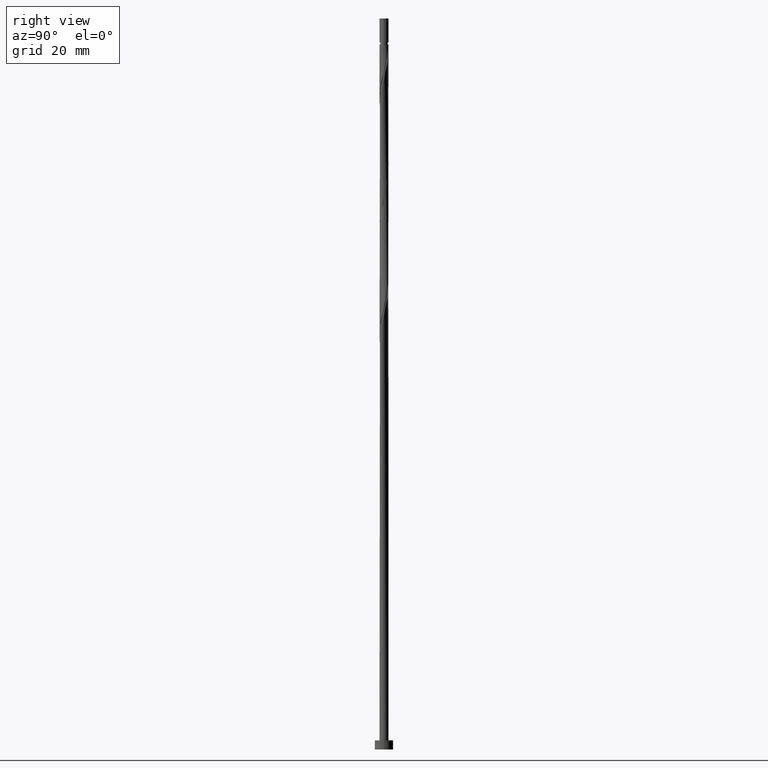
[diagram: clean part render]
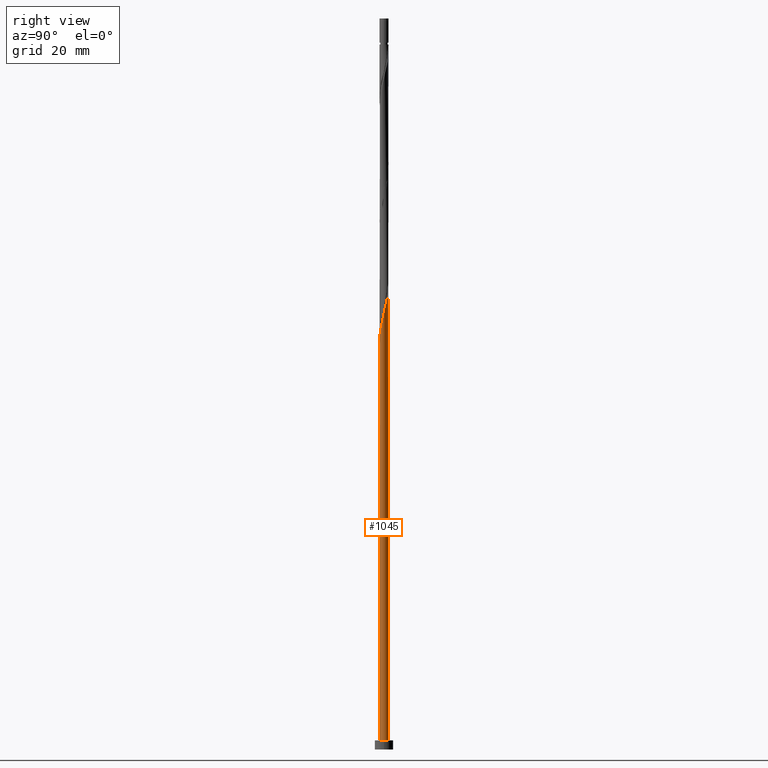
[diagram: same view with one face highlighted and labeled with its STEP entity id]
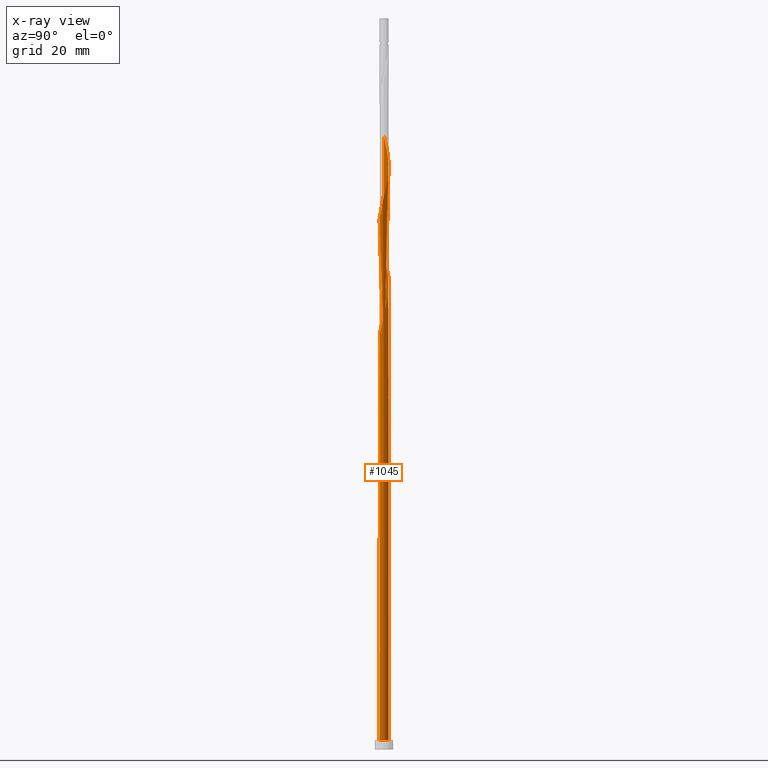
[diagram: x-ray of the same camera — body ghosted, the highlighted face saturated]
A machine part, right view. The second image highlights one B-rep face of the part: STEP entity #1045.
The next image is the same camera in x-ray: the body ghosted, the highlighted face saturated — about 0% of this face is hidden behind the body in this view.
In plain terms, the highlighted cylindrical surface (bore or boss wall) has radius 1 mm, axis along (-0, -0, -1).
Its self-contained STEP definition (entity closure, byte-faithful):
#16 = CARTESIAN_POINT ( 'NONE',  ( -0.9900775620072764793, -0.2010438236649822186, 109.1130906859668102 ) ) ;
#21 = VERTEX_POINT ( 'NONE', #286 ) ;
#23 = CARTESIAN_POINT ( 'NONE',  ( -0.8087728116229547792, 0.5881211942954480687, 81.51839371626978448 ) ) ;
#38 = VERTEX_POINT ( 'NONE', #1238 ) ;
#40 = AXIS2_PLACEMENT_3D ( 'NONE', #466, #718, #334 ) ;
#56 = CARTESIAN_POINT ( 'NONE',  ( -0.3624206617887646975, 0.9320146264456353746, 79.16990886778495451 ) ) ;
#62 = CARTESIAN_POINT ( 'NONE',  ( -0.8003017030802065390, 0.6165949901442839831, 79.75703007990617266 ) ) ;
#76 = CARTESIAN_POINT ( 'NONE',  ( 0.2284171888200490219, 0.9841228509061530350, 126.7267270496031841 ) ) ;
#93 = CARTESIAN_POINT ( 'NONE',  ( -0.08516121475689701625, -0.9963671850784390216, 114.3971815950576598 ) ) ;
#95 =( BOUNDED_CURVE ( )  B_SPLINE_CURVE ( 2, ( #128, #487, #1444, #1319, #614, #1086, #23, #974, #368, #1334, #56, #890, #175, #424, #972 ),
 .UNSPECIFIED., .F., .T. ) 
 B_SPLINE_CURVE_WITH_KNOTS ( ( 3, 2, 2, 2, 2, 2, 2, 3 ),
 ( 0.9295252162417508845, 0.9318181818181817677, 0.9431818181818182323, 0.9545454545454545858, 0.9659090909090909394, 0.9772727272727272929, 0.9886363636363636465, 1.000000000000000000 ),
 .UNSPECIFIED. ) 
 CURVE ( )  GEOMETRIC_REPRESENTATION_ITEM ( )  RATIONAL_B_SPLINE_CURVE ( ( 0.9061101570135543515, 0.9072237824201365708, 0.9090909090909143897, 0.8998376744372167391, 0.9090909090909143897, 0.8998376744372167391, 0.9090909090909143897, 0.8998376744372167391, 0.9090909090909143897, 0.8998376744372167391, 0.9090909090909143897, 0.8998376744372167391, 0.9090909090909143897, 0.8998376744372167391, 0.9090909090909143897 ) ) 
 REPRESENTATION_ITEM ( '' )  );
#103 = CARTESIAN_POINT ( 'NONE',  ( 0.8933318736010407157, 0.4718372192107814223, 97.37066644354254663 ) ) ;
#105 = DIRECTION ( 'NONE',  ( -0.000000000000000000, -0.000000000000000000, -1.000000000000000000 ) ) ;
#111 = CARTESIAN_POINT ( 'NONE',  ( -0.1989974874213285005, 0.9800000000000006484, 102.6547573526334389 ) ) ;
#120 = CARTESIAN_POINT ( 'NONE',  ( 0.6103189422011744414, 0.7921557856826159094, 99.13203007990613003 ) ) ;
#124 = EDGE_CURVE ( 'NONE', #1310, #1288, #1525, .T. ) ;
#126 = ORIENTED_EDGE ( 'NONE', *, *, #983, .F. ) ;
#128 = CARTESIAN_POINT ( 'NONE',  ( -1.000000000000001776, -2.767011830146854185E-16, 84.10266637945619550 ) ) ;
#130 = CARTESIAN_POINT ( 'NONE',  ( -0.9741058992719022758, 0.2260922311882500313, 107.3517270496031415 ) ) ;
#146 = CARTESIAN_POINT ( 'NONE',  ( -0.8003017030802065390, 0.6165949901442839831, 131.4236967465728583 ) ) ;
#172 = CARTESIAN_POINT ( 'NONE',  ( -0.6972353404242069841, 0.7168422979034808629, 79.16990886778492609 ) ) ;
#175 = CARTESIAN_POINT ( 'NONE',  ( -0.08516121475689704401, 0.9963671850784392436, 77.99566644354253242 ) ) ;
#180 = CARTESIAN_POINT ( 'NONE',  ( -0.9415987439861389641, 0.3661475155560036110, 80.93127250414859475 ) ) ;
#211 = CARTESIAN_POINT ( 'NONE',  ( -0.3624206617887647530, -0.9320146264456350416, 113.2229391708152377 ) ) ;
#223 = CARTESIAN_POINT ( 'NONE',  ( -0.6103189422011744414, -0.7921557856826156874, 86.21536341323947283 ) ) ;
#236 = CARTESIAN_POINT ( 'NONE',  ( 0.8087728116229546682, 0.5881211942954475136, 97.95778765566373636 ) ) ;
#245 = CARTESIAN_POINT ( 'NONE',  ( 0.1989974874213285561, -0.9800000000000006484, 89.73809068596676752 ) ) ;
#247 = CYLINDRICAL_SURFACE ( 'NONE', #404, 1.000000000000000000 ) ;
#253 = CARTESIAN_POINT ( 'NONE',  ( -0.7242137496448689538, -0.7044051693801141045, 111.4615755344516259 ) ) ;
#271 = ORIENTED_EDGE ( 'NONE', *, *, #124, .T. ) ;
#276 = EDGE_CURVE ( 'NONE', #1081, #38, #408, .T. ) ;
#285 = CARTESIAN_POINT ( 'NONE',  ( -0.3399002155364026501, 0.9513884807492758444, 77.40854523142132848 ) ) ;
#286 = CARTESIAN_POINT ( 'NONE',  ( 0.1989974874213291112, 0.9800000000000008704, 76.82142401930009612 ) ) ;
#295 = CARTESIAN_POINT ( 'NONE',  ( 0.4670345966523052339, -0.8842390432059767935, 116.7456664435425040 ) ) ;
#324 = CARTESIAN_POINT ( 'NONE',  ( -1.000000000000000000, 0.000000000000000000, 160.0000000000000000 ) ) ;
#332 = CARTESIAN_POINT ( 'NONE',  ( 1.006613054557666587, -0.08603694682049656262, 95.02218159505767403 ) ) ;
#334 = DIRECTION ( 'NONE',  ( -1.000000000000000000, 0.000000000000000000, 0.000000000000000000 ) ) ;
#339 = CARTESIAN_POINT ( 'NONE',  ( -0.8087728116229545572, -0.5881211942954476246, 85.04112098899706496 ) ) ;
#342 = CARTESIAN_POINT ( 'NONE',  ( -0.9415987439861389641, 0.3661475155560036110, 132.5979391708152377 ) ) ;
#347 = CARTESIAN_POINT ( 'NONE',  ( -1.000000000000001554, 3.664421072356603130E-16, 82.45684832581066814 ) ) ;
#355 = CARTESIAN_POINT ( 'NONE',  ( 0.08516121475689712728, 0.9963671850784390216, 101.4805149283909884 ) ) ;
#362 = CARTESIAN_POINT ( 'NONE',  ( -0.3399002155364026501, 0.9513884807492758444, 103.2418785647546429 ) ) ;
#368 = CARTESIAN_POINT ( 'NONE',  ( -0.6103189422011747745, 0.7921557856826160204, 80.34415129202737660 ) ) ;
#379 = CIRCLE ( 'NONE', #1441, 1.000000000000000000 ) ;
#389 = EDGE_CURVE ( 'NONE', #38, #504, #903, .T. ) ;
#395 = VECTOR ( 'NONE', #1283, 1000.000000000000000 ) ;
#404 = AXIS2_PLACEMENT_3D ( 'NONE', #1420, #105, #472 ) ;
#408 =( BOUNDED_CURVE ( )  B_SPLINE_CURVE ( 2, ( #1047, #657, #417, #900, #940, #1314, #339, #836, #223, #696, #1089, #598, #1301, #1293, #245, #1068, #1060, #958, #580, #968, #947, #1436, #455, #332, #932, #1426, #1165, #103, #236, #705, #120, #732, #1053, #1184, #355, #723, #111, #362, #847, #818, #464, #1531, #587, #1193, #130, #607, #1078, #16, #490, #1447, #1321, #253, #1034, #1541, #211, #686, #93, #1043, #1240, #641, #295, #776, #633, #1220, #803, #676, #1538, #1257, #448, #1408, #573, #1145, #792, #1275, #1137, #436, #1399, #76, #812, #684, #459, #911, #936, #1415, #821, #146, #1429, #342, #1297, #726, #1099 ),
 .UNSPECIFIED., .F., .T. ) 
 B_SPLINE_CURVE_WITH_KNOTS ( ( 3, 2, 2, 2, 2, 2, 2, 2, 2, 2, 2, 2, 2, 2, 2, 2, 2, 2, 2, 2, 2, 2, 2, 2, 2, 2, 2, 2, 2, 2, 2, 2, 2, 2, 2, 2, 2, 2, 2, 2, 2, 2, 2, 2, 2, 3 ),
 ( 0.05452521624175103027, 0.05681818181818176772, 0.06818181818181823228, 0.07954545454545458583, 0.09090909090909093937, 0.1022727272727272929, 0.1136363636363636465, 0.1250000000000000000, 0.1363636363636363535, 0.1477272727272727071, 0.1590909090909090606, 0.1704545454545454142, 0.1818181818181817677, 0.1931818181818182323, 0.2045454545454545858, 0.2159090909090909394, 0.2272727272727272929, 0.2386363636363636465, 0.2500000000000000000, 0.2613636363636363535, 0.2727272727272727071, 0.2840909090909090606, 0.2954545454545454142, 0.3068181818181817677, 0.3181818181818182323, 0.3295454545454545858, 0.3409090909090909394, 0.3522727272727272929, 0.3636363636363636465, 0.3750000000000000000, 0.3863636363636363535, 0.3977272727272727071, 0.4090909090909090606, 0.4204545454545454142, 0.4318181818181817677, 0.4431818181818182323, 0.4545454545454545858, 0.4659090909090909394, 0.4772727272727272929, 0.4886363636363636465, 0.5000000000000000000, 0.5113636363636363535, 0.5227272727272727071, 0.5340909090909091717, 0.5454545454545454142, 0.5545252162417509956 ),
 .UNSPECIFIED. ) 
 CURVE ( )  GEOMETRIC_REPRESENTATION_ITEM ( )  RATIONAL_B_SPLINE_CURVE ( ( 0.9061101570135647876, 0.9072237824201470069, 0.9090909090909247148, 0.8998376744372268421, 0.9090909090909247148, 0.8998376744372268421, 0.9090909090909247148, 0.8998376744372268421, 0.9090909090909247148, 0.8998376744372268421, 0.9090909090909247148, 0.8998376744372268421, 0.9090909090909247148, 0.8998376744372268421, 0.9090909090909247148, 0.8998376744372268421, 0.9090909090909247148, 0.8998376744372268421, 0.9090909090909247148, 0.8998376744372268421, 0.9090909090909247148, 0.8998376744372268421, 0.9090909090909247148, 0.8998376744372268421, 0.9090909090909247148, 0.8998376744372268421, 0.9090909090909247148, 0.8998376744372268421, 0.9090909090909247148, 0.8998376744372268421, 0.9090909090909247148, 0.8998376744372268421, 0.9090909090909247148, 0.8998376744372268421, 0.9090909090909247148, 0.8998376744372268421, 0.9090909090909247148, 0.8998376744372268421, 0.9090909090909247148, 0.8998376744372268421, 0.9090909090909247148, 0.8998376744372268421, 0.9090909090909247148, 0.8998376744372268421, 0.9090909090909247148, 0.8998376744372268421, 0.9090909090909247148, 0.8998376744372268421, 0.9090909090909247148, 0.8998376744372268421, 0.9090909090909247148, 0.8998376744372268421, 0.9090909090909247148, 0.8998376744372268421, 0.9090909090909247148, 0.8998376744372268421, 0.9090909090909247148, 0.8998376744372268421, 0.9090909090909247148, 0.8998376744372268421, 0.9090909090909247148, 0.8998376744372268421, 0.9090909090909247148, 0.8998376744372268421, 0.9090909090909247148, 0.8998376744372268421, 0.9090909090909247148, 0.8998376744372268421, 0.9090909090909247148, 0.8998376744372268421, 0.9090909090909247148, 0.8998376744372268421, 0.9090909090909247148, 0.8998376744372268421, 0.9090909090909247148, 0.8998376744372268421, 0.9090909090909247148, 0.8998376744372268421, 0.9090909090909247148, 0.8998376744372268421, 0.9090909090909247148, 0.8998376744372268421, 0.9090909090909247148, 0.8998376744372268421, 0.9090909090909247148, 0.8998376744372268421, 0.9090909090909247148, 0.8998376744372268421, 0.9090909090909247148, 0.9017048011080046610, 0.9061101570135646766 ) ) 
 REPRESENTATION_ITEM ( '' )  );
#411 = CARTESIAN_POINT ( 'NONE',  ( -0.8709502235331723075, 0.4913712528501437138, 80.34415129202737660 ) ) ;
#417 = CARTESIAN_POINT ( 'NONE',  ( -0.9983453082824710334, -0.05750343842224287655, 82.69263614051220657 ) ) ;
#424 = CARTESIAN_POINT ( 'NONE',  ( 0.05809475930625475348, 1.008611519250725674, 77.40854523142134269 ) ) ;
#436 = CARTESIAN_POINT ( 'NONE',  ( 0.4964241347574804286, 0.8799064019851177143, 125.5524846253607336 ) ) ;
#448 = CARTESIAN_POINT ( 'NONE',  ( 0.9983453082824710334, 0.05750343842224273777, 121.4426361405122208 ) ) ;
#449 = CARTESIAN_POINT ( 'NONE',  ( -1.000000000000000000, 0.000000000000000000, 160.0000000000000000 ) ) ;
#455 = CARTESIAN_POINT ( 'NONE',  ( 0.9741058992719026088, -0.2260922311882499480, 94.43506038293644167 ) ) ;
#459 = CARTESIAN_POINT ( 'NONE',  ( -0.1989974874213285005, 0.9800000000000006484, 128.4880906859667675 ) ) ;
#464 = CARTESIAN_POINT ( 'NONE',  ( -0.6972353404242069841, 0.7168422979034808629, 105.0032422011182689 ) ) ;
#466 = CARTESIAN_POINT ( 'NONE',  ( 0.000000000000000000, 0.000000000000000000, 76.82142401930008191 ) ) ;
#472 = DIRECTION ( 'NONE',  ( -1.000000000000000000, 0.000000000000000000, 0.000000000000000000 ) ) ;
#475 = EDGE_CURVE ( 'NONE', #1288, #1310, #379, .T. ) ;
#487 = CARTESIAN_POINT ( 'NONE',  ( -1.000000000000001998, 0.02877552652382183926, 83.98438393738541663 ) ) ;
#490 = CARTESIAN_POINT ( 'NONE',  ( -0.9417047178041579869, -0.3364405214378818343, 109.7002118980879715 ) ) ;
#504 = VERTEX_POINT ( 'NONE', #713 ) ;
#508 = ORIENTED_EDGE ( 'NONE', *, *, #1133, .T. ) ;
#534 = CARTESIAN_POINT ( 'NONE',  ( -1.000000000000001110, 0.1145289273851218953, 81.98607462136972401 ) ) ;
#573 = CARTESIAN_POINT ( 'NONE',  ( 0.9417047178041579869, 0.3364405214378816122, 122.6168785647546429 ) ) ;
#580 = CARTESIAN_POINT ( 'NONE',  ( 0.6972353404242069841, -0.7168422979034808629, 92.08657553445161170 ) ) ;
#587 = CARTESIAN_POINT ( 'NONE',  ( -0.8709502235331723075, 0.4913712528501437138, 106.1774846253606768 ) ) ;
#598 = CARTESIAN_POINT ( 'NONE',  ( -0.2284171888200488831, -0.9841228509061530350, 87.97672704960314150 ) ) ;
#607 = CARTESIAN_POINT ( 'NONE',  ( -1.006613054557666587, 0.08603694682049664588, 107.9388482617243881 ) ) ;
#613 = EDGE_CURVE ( 'NONE', #504, #21, #95, .T. ) ;
#614 = CARTESIAN_POINT ( 'NONE',  ( -0.9417047178041582089, 0.3364405214378818898, 82.69263614051223499 ) ) ;
#633 = CARTESIAN_POINT ( 'NONE',  ( 0.6972353404242069841, -0.7168422979034808629, 117.9199088677849119 ) ) ;
#641 = CARTESIAN_POINT ( 'NONE',  ( 0.3399002155364025946, -0.9513884807492763995, 116.1585452314213427 ) ) ;
#657 = CARTESIAN_POINT ( 'NONE',  ( -1.000000000000001554, -0.02877552652382357398, 82.57513076788144701 ) ) ;
#665 = CARTESIAN_POINT ( 'NONE',  ( -0.1989974874213285838, 0.9800000000000006484, 76.82142401930009612 ) ) ;
#676 = CARTESIAN_POINT ( 'NONE',  ( 0.9415987439861390751, -0.3661475155560033334, 119.6812725041486232 ) ) ;
#684 = CARTESIAN_POINT ( 'NONE',  ( -0.05809475930625460777, 1.008611519250725452, 127.9009694738455636 ) ) ;
#686 = CARTESIAN_POINT ( 'NONE',  ( -0.2284171888200488831, -0.9841228509061530350, 113.8100603829364985 ) ) ;
#696 = CARTESIAN_POINT ( 'NONE',  ( -0.4964241347574807617, -0.8799064019851176033, 86.80248462536070519 ) ) ;
#702 = EDGE_CURVE ( 'NONE', #926, #1081, #1200, .T. ) ;
#705 = CARTESIAN_POINT ( 'NONE',  ( 0.7242137496448691758, 0.7044051693801138825, 98.54490886778498293 ) ) ;
#711 = CIRCLE ( 'NONE', #40, 1.000000000000000000 ) ;
#713 = CARTESIAN_POINT ( 'NONE',  ( -1.000000000000001776, -2.767011830146854185E-16, 84.10266637945619550 ) ) ;
#718 = DIRECTION ( 'NONE',  ( 0.000000000000000000, 0.000000000000000000, -1.000000000000000000 ) ) ;
#723 = CARTESIAN_POINT ( 'NONE',  ( -0.05809475930625460777, 1.008611519250725452, 102.0676361405122208 ) ) ;
#726 = CARTESIAN_POINT ( 'NONE',  ( -1.000000000000000888, 0.1145289273851234496, 133.6527412880364238 ) ) ;
#732 = CARTESIAN_POINT ( 'NONE',  ( 0.4964241347574804286, 0.8799064019851177143, 99.71915129202740502 ) ) ;
#766 = CARTESIAN_POINT ( 'NONE',  ( -0.4670345966523054559, 0.8842390432059767935, 77.99566644354253242 ) ) ;
#776 = CARTESIAN_POINT ( 'NONE',  ( 0.5941689777682086504, -0.8170896056626780757, 117.3327876556637648 ) ) ;
#792 = CARTESIAN_POINT ( 'NONE',  ( 0.8087728116229546682, 0.5881211942954475136, 123.7911209889970365 ) ) ;
#803 = CARTESIAN_POINT ( 'NONE',  ( 0.8709502235331723075, -0.4913712528501438248, 119.0941512920273482 ) ) ;
#812 = CARTESIAN_POINT ( 'NONE',  ( 0.08516121475689712728, 0.9963671850784390216, 127.3138482617243454 ) ) ;
#818 = CARTESIAN_POINT ( 'NONE',  ( -0.5941689777682084284, 0.8170896056626781867, 104.4161209889970934 ) ) ;
#821 = CARTESIAN_POINT ( 'NONE',  ( -0.6972353404242069841, 0.7168422979034808629, 130.8365755344515833 ) ) ;
#836 = CARTESIAN_POINT ( 'NONE',  ( -0.7242137496448689538, -0.7044051693801141045, 85.62824220111829732 ) ) ;
#847 = CARTESIAN_POINT ( 'NONE',  ( -0.4670345966523054559, 0.8842390432059767935, 103.8289997768758326 ) ) ;
#890 = CARTESIAN_POINT ( 'NONE',  ( -0.2284171888200489109, 0.9841228509061530350, 78.58278765566376478 ) ) ;
#894 = CARTESIAN_POINT ( 'NONE',  ( -1.000000000000001554, 3.664421072356603130E-16, 82.45684832581066814 ) ) ;
#900 = CARTESIAN_POINT ( 'NONE',  ( -0.9900775620072764793, -0.2010438236649822186, 83.27975735263345314 ) ) ;
#903 = LINE ( 'NONE', #449, #395 ) ;
#911 = CARTESIAN_POINT ( 'NONE',  ( -0.3399002155364026501, 0.9513884807492758444, 129.0752118980880141 ) ) ;
#912 = CARTESIAN_POINT ( 'NONE',  ( 0.000000000000000000, 0.000000000000000000, 2.000000000000000000 ) ) ;
#926 = VERTEX_POINT ( 'NONE', #1031 ) ;
#932 = CARTESIAN_POINT ( 'NONE',  ( 0.9983453082824710334, 0.05750343842224273777, 95.60930280717887797 ) ) ;
#936 = CARTESIAN_POINT ( 'NONE',  ( -0.4670345966523054559, 0.8842390432059767935, 129.6623331102091754 ) ) ;
#940 = CARTESIAN_POINT ( 'NONE',  ( -0.9417047178041579869, -0.3364405214378818343, 83.86687856475467129 ) ) ;
#947 = CARTESIAN_POINT ( 'NONE',  ( 0.8709502235331723075, -0.4913712528501438248, 93.26081795869403379 ) ) ;
#958 = CARTESIAN_POINT ( 'NONE',  ( 0.5941689777682086504, -0.8170896056626780757, 91.49945432233043618 ) ) ;
#968 = CARTESIAN_POINT ( 'NONE',  ( 0.8003017030802065390, -0.6165949901442840941, 92.67369674657285827 ) ) ;
#972 = CARTESIAN_POINT ( 'NONE',  ( 0.1989974874213291389, 0.9800000000000008704, 76.82142401930009612 ) ) ;
#974 = CARTESIAN_POINT ( 'NONE',  ( -0.7242137496448688427, 0.7044051693801144376, 80.93127250414859475 ) ) ;
#982 = ORIENTED_EDGE ( 'NONE', *, *, #389, .F. ) ;
#983 = EDGE_CURVE ( 'NONE', #1081, #1288, #1535, .T. ) ;
#1012 = ORIENTED_EDGE ( 'NONE', *, *, #983, .T. ) ;
#1031 = CARTESIAN_POINT ( 'NONE',  ( -0.1989974874213285838, 0.9800000000000006484, 76.82142401930009612 ) ) ;
#1034 = CARTESIAN_POINT ( 'NONE',  ( -0.6103189422011744414, -0.7921557856826156874, 112.0486967465728156 ) ) ;
#1043 = CARTESIAN_POINT ( 'NONE',  ( 0.05809475930625476042, -1.008611519250725452, 114.9843028071789348 ) ) ;
#1045 = ADVANCED_FACE ( 'NONE', ( #1055 ), #247, .T. ) ;
#1047 = CARTESIAN_POINT ( 'NONE',  ( -1.000000000000001554, 3.664421072356603130E-16, 82.45684832581066814 ) ) ;
#1053 = CARTESIAN_POINT ( 'NONE',  ( 0.3624206617887644200, 0.9320146264456350416, 100.3062725041485663 ) ) ;
#1055 = FACE_OUTER_BOUND ( 'NONE', #1115, .T. ) ;
#1060 = CARTESIAN_POINT ( 'NONE',  ( 0.4670345966523052339, -0.8842390432059767935, 90.91233311020918961 ) ) ;
#1068 = CARTESIAN_POINT ( 'NONE',  ( 0.3399002155364025946, -0.9513884807492763995, 90.32521189808801410 ) ) ;
#1078 = CARTESIAN_POINT ( 'NONE',  ( -0.9983453082824710334, -0.05750343842224287655, 108.5259694738455494 ) ) ;
#1081 = VERTEX_POINT ( 'NONE', #347 ) ;
#1083 = ORIENTED_EDGE ( 'NONE', *, *, #276, .F. ) ;
#1086 = CARTESIAN_POINT ( 'NONE',  ( -0.8933318736010403827, 0.4718372192107816998, 82.10551492839101684 ) ) ;
#1089 = CARTESIAN_POINT ( 'NONE',  ( -0.3624206617887647530, -0.9320146264456350416, 87.38960583748192334 ) ) ;
#1099 = CARTESIAN_POINT ( 'NONE',  ( -1.000000000000001554, 3.664421072356603130E-16, 134.1235149924773395 ) ) ;
#1115 = EDGE_LOOP ( 'NONE', ( #982, #1083, #1012, #1348, #271, #126, #1274, #508, #1378 ) ) ;
#1120 = CARTESIAN_POINT ( 'NONE',  ( -0.9741058992719022758, 0.2260922311882500313, 81.51839371626978448 ) ) ;
#1133 = EDGE_CURVE ( 'NONE', #926, #21, #711, .T. ) ;
#1137 = CARTESIAN_POINT ( 'NONE',  ( 0.6103189422011744414, 0.7921557856826159094, 124.9653634132394728 ) ) ;
#1142 = DIRECTION ( 'NONE',  ( 1.000000000000000000, 0.000000000000000000, 0.000000000000000000 ) ) ;
#1144 = AXIS2_PLACEMENT_3D ( 'NONE', #1522, #1367, #1142 ) ;
#1145 = CARTESIAN_POINT ( 'NONE',  ( 0.8933318736010407157, 0.4718372192107814223, 123.2039997768759036 ) ) ;
#1146 = DIRECTION ( 'NONE',  ( 1.000000000000000000, 0.000000000000000000, 0.000000000000000000 ) ) ;
#1165 = CARTESIAN_POINT ( 'NONE',  ( 0.9417047178041579869, 0.3364405214378816122, 96.78354523142131427 ) ) ;
#1179 = VECTOR ( 'NONE', #1414, 1000.000000000000000 ) ;
#1184 = CARTESIAN_POINT ( 'NONE',  ( 0.2284171888200490219, 0.9841228509061530350, 100.8933937162698129 ) ) ;
#1193 = CARTESIAN_POINT ( 'NONE',  ( -0.9415987439861389641, 0.3661475155560036110, 106.7646058374819376 ) ) ;
#1200 =( BOUNDED_CURVE ( )  B_SPLINE_CURVE ( 2, ( #665, #285, #766, #1385, #172, #62, #411, #180, #1120, #534, #894 ),
 .UNSPECIFIED., .F., .T. ) 
 B_SPLINE_CURVE_WITH_KNOTS ( ( 3, 2, 2, 2, 2, 3 ),
 ( 0.000000000000000000, 0.01136363636363635354, 0.02272727272727270709, 0.03409090909090906063, 0.04545454545454541417, 0.05452521624175103027 ),
 .UNSPECIFIED. ) 
 CURVE ( )  GEOMETRIC_REPRESENTATION_ITEM ( )  RATIONAL_B_SPLINE_CURVE ( ( 0.9090909090909247148, 0.8998376744372268421, 0.9090909090909247148, 0.8998376744372268421, 0.9090909090909247148, 0.8998376744372268421, 0.9090909090909247148, 0.8998376744372268421, 0.9090909090909247148, 0.9017048011080046610, 0.9061101570135647876 ) ) 
 REPRESENTATION_ITEM ( '' )  );
#1220 = CARTESIAN_POINT ( 'NONE',  ( 0.8003017030802065390, -0.6165949901442840941, 118.5070300799061727 ) ) ;
#1230 = CARTESIAN_POINT ( 'NONE',  ( 1.000000000000000000, 0.000000000000000000, 2.000000000000000000 ) ) ;
#1238 = CARTESIAN_POINT ( 'NONE',  ( -1.000000000000001554, 3.664421072356603130E-16, 134.1235149924773395 ) ) ;
#1240 = CARTESIAN_POINT ( 'NONE',  ( 0.1989974874213285561, -0.9800000000000006484, 115.5714240193000819 ) ) ;
#1257 = CARTESIAN_POINT ( 'NONE',  ( 1.006613054557666587, -0.08603694682049656262, 120.8555149283910026 ) ) ;
#1274 = ORIENTED_EDGE ( 'NONE', *, *, #702, .F. ) ;
#1275 = CARTESIAN_POINT ( 'NONE',  ( 0.7242137496448691758, 0.7044051693801138825, 124.3782422011183399 ) ) ;
#1283 = DIRECTION ( 'NONE',  ( -0.000000000000000000, -0.000000000000000000, -1.000000000000000000 ) ) ;
#1288 = VERTEX_POINT ( 'NONE', #1465 ) ;
#1293 = CARTESIAN_POINT ( 'NONE',  ( 0.05809475930625476042, -1.008611519250725452, 89.15096947384557780 ) ) ;
#1297 = CARTESIAN_POINT ( 'NONE',  ( -0.9741058992719022758, 0.2260922311882500313, 133.1850603829364559 ) ) ;
#1301 = CARTESIAN_POINT ( 'NONE',  ( -0.08516121475689701625, -0.9963671850784390216, 88.56384826172434543 ) ) ;
#1310 = VERTEX_POINT ( 'NONE', #1230 ) ;
#1314 = CARTESIAN_POINT ( 'NONE',  ( -0.8933318736010406047, -0.4718372192107816443, 84.45399977687590365 ) ) ;
#1319 = CARTESIAN_POINT ( 'NONE',  ( -0.9900775620072763683, 0.2010438236649822741, 83.27975735263345314 ) ) ;
#1321 = CARTESIAN_POINT ( 'NONE',  ( -0.8087728116229545572, -0.5881211942954476246, 110.8744543223303793 ) ) ;
#1334 = CARTESIAN_POINT ( 'NONE',  ( -0.4964241347574806507, 0.8799064019851177143, 79.75703007990617266 ) ) ;
#1348 = ORIENTED_EDGE ( 'NONE', *, *, #475, .T. ) ;
#1367 = DIRECTION ( 'NONE',  ( 0.000000000000000000, 0.000000000000000000, 1.000000000000000000 ) ) ;
#1378 = ORIENTED_EDGE ( 'NONE', *, *, #613, .F. ) ;
#1385 = CARTESIAN_POINT ( 'NONE',  ( -0.5941689777682084284, 0.8170896056626781867, 78.58278765566375057 ) ) ;
#1388 = DIRECTION ( 'NONE',  ( 0.000000000000000000, 0.000000000000000000, 1.000000000000000000 ) ) ;
#1399 = CARTESIAN_POINT ( 'NONE',  ( 0.3624206617887644200, 0.9320146264456350416, 126.1396058374818807 ) ) ;
#1408 = CARTESIAN_POINT ( 'NONE',  ( 0.9900775620072764793, 0.2010438236649821075, 122.0297573526334673 ) ) ;
#1414 = DIRECTION ( 'NONE',  ( -0.000000000000000000, -0.000000000000000000, -1.000000000000000000 ) ) ;
#1415 = CARTESIAN_POINT ( 'NONE',  ( -0.5941689777682084284, 0.8170896056626781867, 130.2494543223304220 ) ) ;
#1420 = CARTESIAN_POINT ( 'NONE',  ( 0.000000000000000000, 0.000000000000000000, 160.0000000000000000 ) ) ;
#1426 = CARTESIAN_POINT ( 'NONE',  ( 0.9900775620072764793, 0.2010438236649821075, 96.19642401930009612 ) ) ;
#1429 = CARTESIAN_POINT ( 'NONE',  ( -0.8709502235331723075, 0.4913712528501437138, 132.0108179586940196 ) ) ;
#1436 = CARTESIAN_POINT ( 'NONE',  ( 0.9415987439861390751, -0.3661475155560033334, 93.84793917081525194 ) ) ;
#1441 = AXIS2_PLACEMENT_3D ( 'NONE', #912, #1388, #1146 ) ;
#1444 = CARTESIAN_POINT ( 'NONE',  ( -0.9983453082824713665, 0.05750343842224298757, 83.86687856475467129 ) ) ;
#1447 = CARTESIAN_POINT ( 'NONE',  ( -0.8933318736010406047, -0.4718372192107816443, 110.2873331102091896 ) ) ;
#1465 = CARTESIAN_POINT ( 'NONE',  ( -1.000000000000000000, 0.000000000000000000, 2.000000000000000000 ) ) ;
#1522 = CARTESIAN_POINT ( 'NONE',  ( 0.000000000000000000, 0.000000000000000000, 2.000000000000000000 ) ) ;
#1525 = CIRCLE ( 'NONE', #1144, 1.000000000000000000 ) ;
#1531 = CARTESIAN_POINT ( 'NONE',  ( -0.8003017030802065390, 0.6165949901442839831, 105.5903634132395297 ) ) ;
#1535 = LINE ( 'NONE', #324, #1179 ) ;
#1538 = CARTESIAN_POINT ( 'NONE',  ( 0.9741058992719026088, -0.2260922311882499480, 120.2683937162697845 ) ) ;
#1541 = CARTESIAN_POINT ( 'NONE',  ( -0.4964241347574807617, -0.8799064019851176033, 112.6358179586940338 ) ) ;